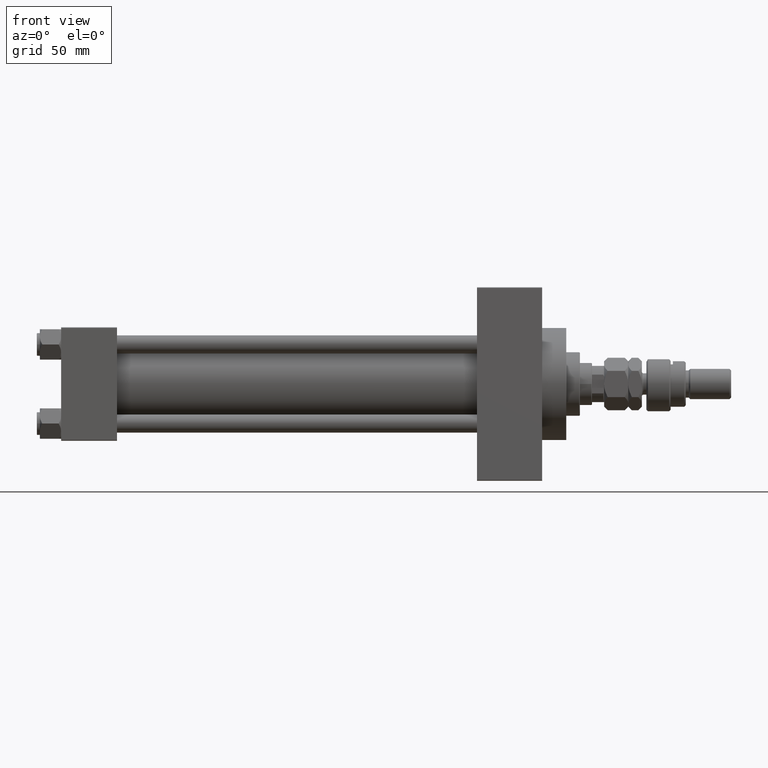
[diagram: clean part render]
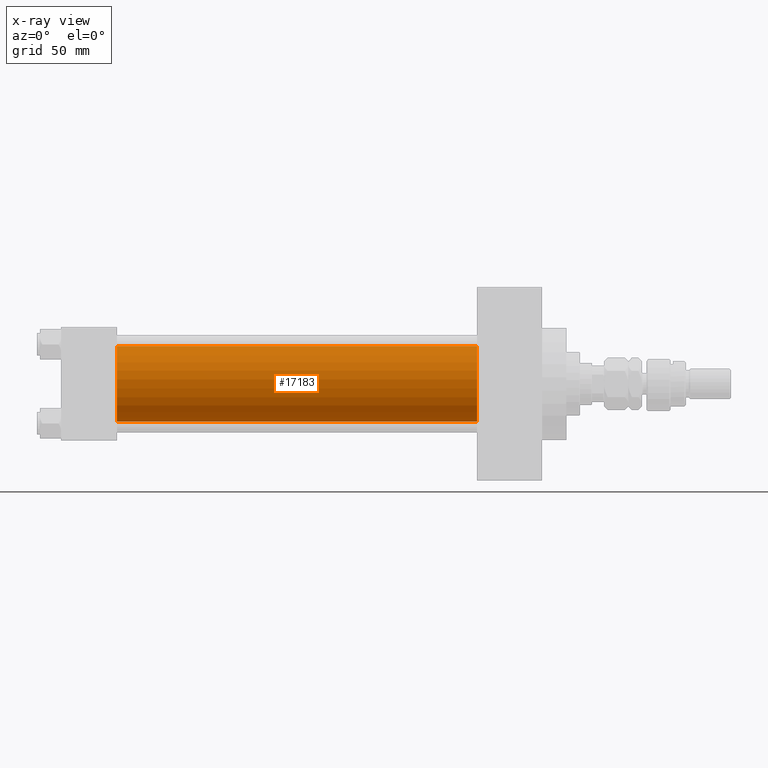
[diagram: x-ray — body ghosted, one internal face saturated and labeled with its STEP entity id]
A machine part, front view, then the same camera in x-ray: the body is ghosted and one INTERNAL B-rep face — a face not visible from any outside direction — is saturated and labeled: STEP entity #17183.
In plain terms, the highlighted cylindrical surface (partial cylindrical patch) has radius 25 mm, axis along (-1, -0, -0).
Its self-contained STEP definition (entity closure, byte-faithful):
#537 = CARTESIAN_POINT ( 'NONE',  ( 274.9999999999999432, -2.602085213965210642E-15, 0.000000000000000000 ) ) ;
#872 = DIRECTION ( 'NONE',  ( 0.000000000000000000, 0.000000000000000000, -1.000000000000000000 ) ) ;
#2349 = EDGE_CURVE ( 'NONE', #46409, #5556, #12389, .T. ) ;
#4559 = ORIENTED_EDGE ( 'NONE', *, *, #29070, .T. ) ;
#5556 = VERTEX_POINT ( 'NONE', #35773 ) ;
#7427 = LINE ( 'NONE', #48177, #8789 ) ;
#8215 = DIRECTION ( 'NONE',  ( -1.000000000000000000, -0.000000000000000000, -0.000000000000000000 ) ) ;
#8789 = VECTOR ( 'NONE', #23567, 1000.000000000000000 ) ;
#10089 = ORIENTED_EDGE ( 'NONE', *, *, #27276, .F. ) ;
#11543 = EDGE_CURVE ( 'NONE', #41662, #33860, #11814, .T. ) ;
#11814 = CIRCLE ( 'NONE', #21919, 25.00000000000000000 ) ;
#12389 = CIRCLE ( 'NONE', #30952, 25.00000000000000000 ) ;
#15299 = DIRECTION ( 'NONE',  ( -1.000000000000000000, -0.000000000000000000, -0.000000000000000000 ) ) ;
#17009 = DIRECTION ( 'NONE',  ( 0.000000000000000000, 0.000000000000000000, -1.000000000000000000 ) ) ;
#17183 = ADVANCED_FACE ( 'NONE', ( #47906 ), #20125, .F. ) ;
#18232 = DIRECTION ( 'NONE',  ( 1.000000000000000000, 0.000000000000000000, 0.000000000000000000 ) ) ;
#20125 = CYLINDRICAL_SURFACE ( 'NONE', #27054, 25.00000000000000000 ) ;
#20358 = CARTESIAN_POINT ( 'NONE',  ( 37.00000000000000000, 4.595317839031724996E-16, -25.00000000000000000 ) ) ;
#21919 = AXIS2_PLACEMENT_3D ( 'NONE', #45818, #28912, #17009 ) ;
#22471 = ORIENTED_EDGE ( 'NONE', *, *, #11543, .F. ) ;
#23567 = DIRECTION ( 'NONE',  ( -1.000000000000000000, -0.000000000000000000, -0.000000000000000000 ) ) ;
#24747 = EDGE_LOOP ( 'NONE', ( #32594, #4559, #22471, #10089 ) ) ;
#27054 = AXIS2_PLACEMENT_3D ( 'NONE', #537, #8215, #28325 ) ;
#27276 = EDGE_CURVE ( 'NONE', #46409, #41662, #47035, .T. ) ;
#28325 = DIRECTION ( 'NONE',  ( 0.000000000000000000, 0.000000000000000000, 1.000000000000000000 ) ) ;
#28912 = DIRECTION ( 'NONE',  ( 1.000000000000000000, 0.000000000000000000, 0.000000000000000000 ) ) ;
#29070 = EDGE_CURVE ( 'NONE', #5556, #33860, #7427, .T. ) ;
#30061 = CARTESIAN_POINT ( 'NONE',  ( 37.00000000000000000, -2.602085213965210642E-15, 25.00000000000000000 ) ) ;
#30952 = AXIS2_PLACEMENT_3D ( 'NONE', #45316, #18232, #872 ) ;
#32594 = ORIENTED_EDGE ( 'NONE', *, *, #2349, .T. ) ;
#33860 = VERTEX_POINT ( 'NONE', #20358 ) ;
#35773 = CARTESIAN_POINT ( 'NONE',  ( 274.9999999999999432, 4.595317839031724996E-16, -25.00000000000000000 ) ) ;
#41662 = VERTEX_POINT ( 'NONE', #30061 ) ;
#43010 = CARTESIAN_POINT ( 'NONE',  ( 274.9999999999999432, -2.602085213965210642E-15, 25.00000000000000000 ) ) ;
#45316 = CARTESIAN_POINT ( 'NONE',  ( 274.9999999999999432, -2.602085213965210642E-15, 0.000000000000000000 ) ) ;
#45818 = CARTESIAN_POINT ( 'NONE',  ( 37.00000000000000000, -2.602085213965210642E-15, 0.000000000000000000 ) ) ;
#45915 = VECTOR ( 'NONE', #15299, 1000.000000000000000 ) ;
#46409 = VERTEX_POINT ( 'NONE', #43010 ) ;
#47035 = LINE ( 'NONE', #51543, #45915 ) ;
#47906 = FACE_OUTER_BOUND ( 'NONE', #24747, .T. ) ;
#48177 = CARTESIAN_POINT ( 'NONE',  ( 274.9999999999999432, 4.595317839031724996E-16, -25.00000000000000000 ) ) ;
#51543 = CARTESIAN_POINT ( 'NONE',  ( 274.9999999999999432, -2.602085213965210642E-15, 25.00000000000000000 ) ) ;